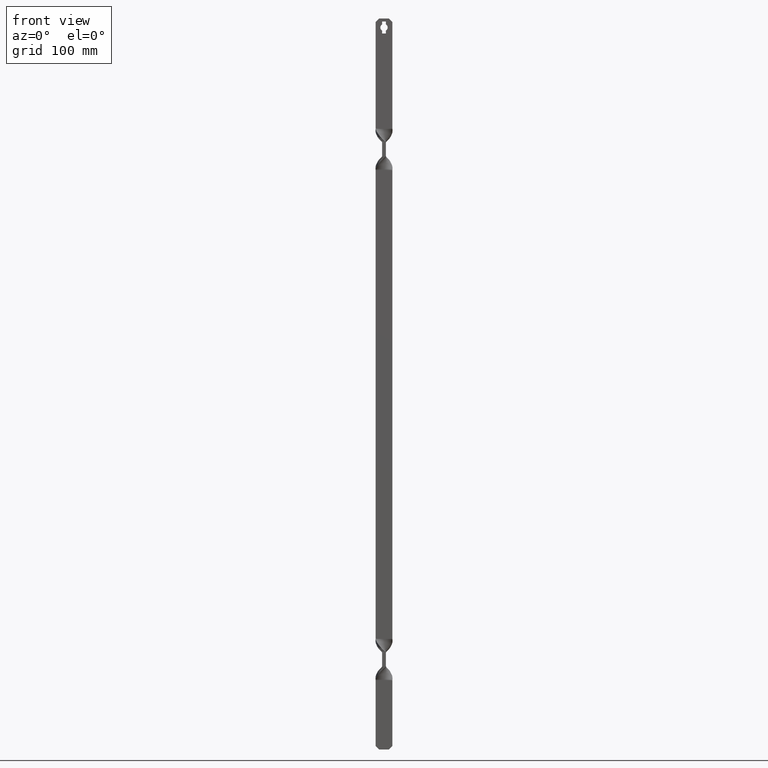
[diagram: clean part render]
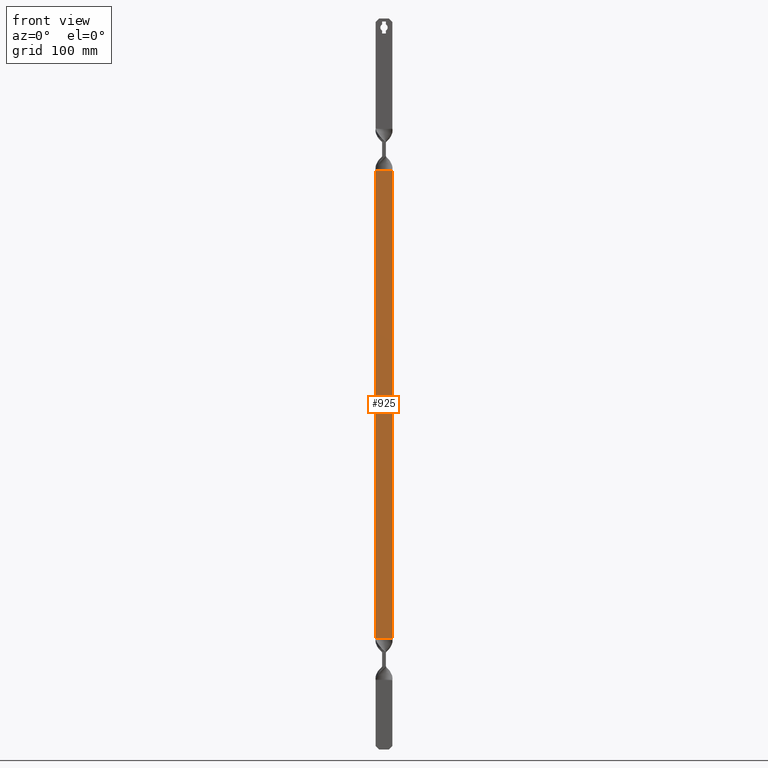
[diagram: same view with one face highlighted and labeled with its STEP entity id]
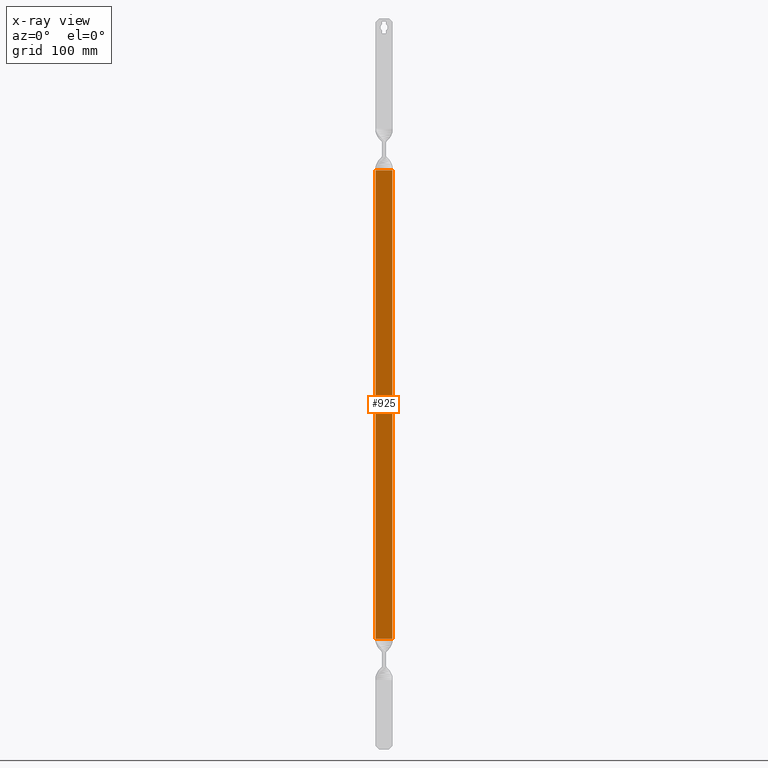
[diagram: x-ray of the same camera — body ghosted, the highlighted face saturated]
A machine part, front view. The second image highlights one B-rep face of the part: STEP entity #925.
The next image is the same camera in x-ray: the body ghosted, the highlighted face saturated — about 0% of this face is hidden behind the body in this view.
In plain terms, the highlighted face is a freeform B-spline surface patch.
Its self-contained STEP definition (entity closure, byte-faithful):
#643=CARTESIAN_POINT('',(-7.000000000000110,-5.681219E-014,482.500000000000000));
#644=VERTEX_POINT('',#643);
#814=CARTESIAN_POINT('',(6.999999999999890,5.681219E-014,482.500000000000000));
#815=VERTEX_POINT('',#814);
#887=CARTESIAN_POINT('',(6.999999999999890,5.681219E-014,482.500000000000000));
#888=CARTESIAN_POINT('',(-7.000000000000110,-5.681219E-014,482.500000000000000));
#889=QUASI_UNIFORM_CURVE('',1,(#887,#888),.UNSPECIFIED.,.F.,.U.);
#890=EDGE_CURVE('',#815,#644,#889,.T.);
#898=CARTESIAN_POINT('',(-7.699299972865394,5.684342E-014,73.019500755895649));
#899=CARTESIAN_POINT('',(7.699300348374436,5.684342E-014,73.019500755895649));
#900=CARTESIAN_POINT('',(-7.699299972865394,5.684342E-014,501.980509704719510));
#901=CARTESIAN_POINT('',(7.699300348374435,5.684342E-014,501.980509704719510));
#902=B_SPLINE_SURFACE_WITH_KNOTS('',1,1,((#898,#900),(#899,#901)),.UNSPECIFIED.,.F.,.F.,.U.,(2,2),(2,2),(0.0,15.398600321239829),(0.0,428.961008948823920),.UNSPECIFIED.);
#903=CARTESIAN_POINT('',(-7.000000000000110,-5.684342E-014,92.500000000000000));
#904=VERTEX_POINT('',#903);
#905=CARTESIAN_POINT('',(6.999999999999890,5.681219E-014,92.500000000001094));
#906=VERTEX_POINT('',#905);
#907=CARTESIAN_POINT('',(-7.000000000000110,-5.684342E-014,92.500000000000000));
#908=CARTESIAN_POINT('',(6.999999999999890,5.681219E-014,92.500000000001094));
#909=QUASI_UNIFORM_CURVE('',1,(#907,#908),.UNSPECIFIED.,.F.,.U.);
#910=EDGE_CURVE('',#904,#906,#909,.T.);
#911=ORIENTED_EDGE('',*,*,#910,.T.);
#912=CARTESIAN_POINT('',(6.999999999999890,5.681219E-014,482.500000000000000));
#913=CARTESIAN_POINT('',(6.999999999999890,5.681219E-014,92.500000000001094));
#914=QUASI_UNIFORM_CURVE('',1,(#912,#913),.UNSPECIFIED.,.F.,.U.);
#915=EDGE_CURVE('',#815,#906,#914,.T.);
#916=ORIENTED_EDGE('',*,*,#915,.F.);
#917=ORIENTED_EDGE('',*,*,#890,.T.);
#918=CARTESIAN_POINT('',(-7.000000000000110,-5.681219E-014,482.500000000000000));
#919=CARTESIAN_POINT('',(-7.000000000000110,-5.684342E-014,92.500000000000000));
#920=QUASI_UNIFORM_CURVE('',1,(#918,#919),.UNSPECIFIED.,.F.,.U.);
#921=EDGE_CURVE('',#644,#904,#920,.T.);
#922=ORIENTED_EDGE('',*,*,#921,.T.);
#923=EDGE_LOOP('',(#911,#916,#917,#922));
#924=FACE_OUTER_BOUND('',#923,.T.);
#925=ADVANCED_FACE('',(#924),#902,.T.);